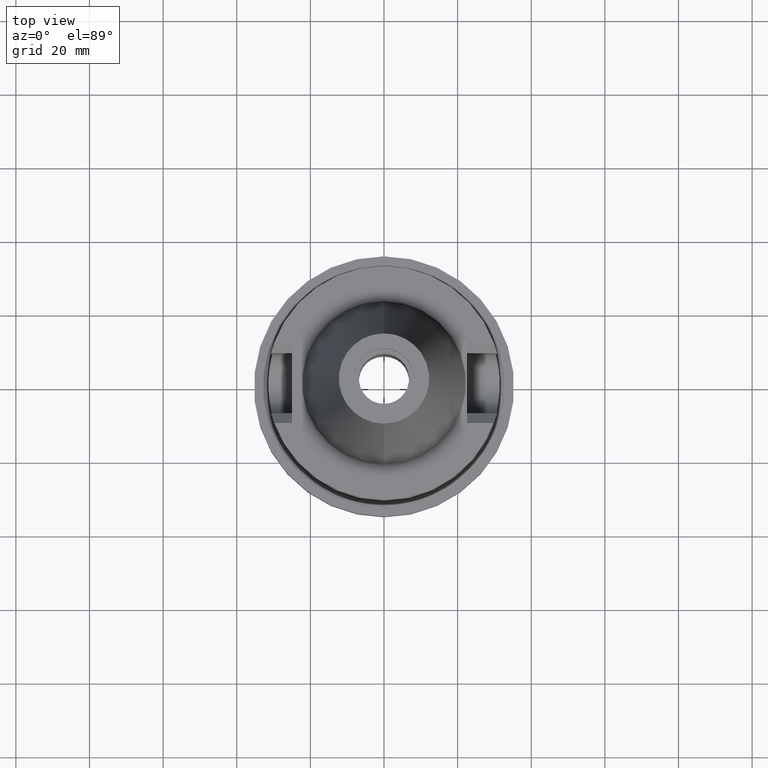
[diagram: clean part render]
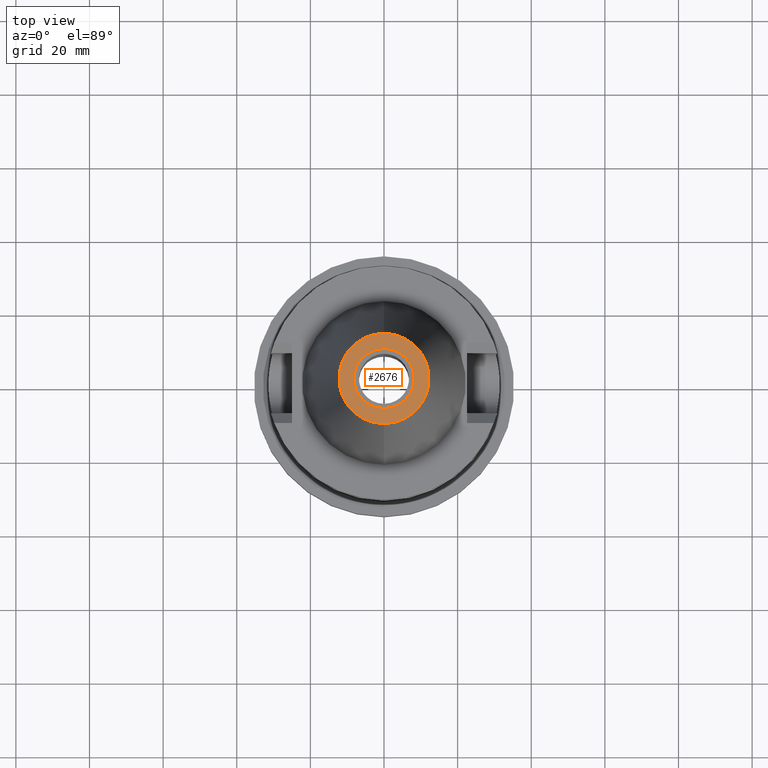
[diagram: same view with one face highlighted and labeled with its STEP entity id]
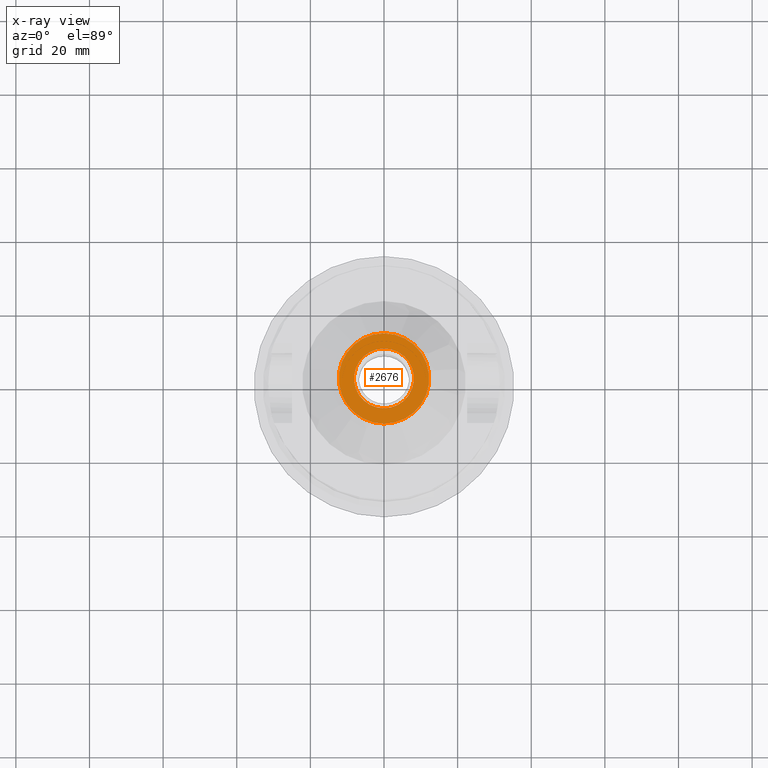
[diagram: x-ray of the same camera — body ghosted, the highlighted face saturated]
A machine part, top view. The second image highlights one B-rep face of the part: STEP entity #2676.
The next image is the same camera in x-ray: the body ghosted, the highlighted face saturated — about 0% of this face is hidden behind the body in this view.
In plain terms, the highlighted planar face has unit normal (0, 0, 1).
Its self-contained STEP definition (entity closure, byte-faithful):
#1224=CARTESIAN_POINT('',(0.E0,0.E0,6.825E1));
#1225=DIRECTION('',(0.E0,0.E0,-1.E0));
#1226=DIRECTION('',(0.E0,-1.E0,0.E0));
#1227=AXIS2_PLACEMENT_3D('',#1224,#1225,#1226);
#1232=CARTESIAN_POINT('',(0.E0,0.E0,6.825E1));
#1233=DIRECTION('',(0.E0,0.E0,-1.E0));
#1234=DIRECTION('',(0.E0,1.E0,0.E0));
#1235=AXIS2_PLACEMENT_3D('',#1232,#1233,#1234);
#1240=CARTESIAN_POINT('',(0.E0,0.E0,6.825E1));
#1241=DIRECTION('',(0.E0,0.E0,1.E0));
#1242=DIRECTION('',(0.E0,-1.E0,0.E0));
#1243=AXIS2_PLACEMENT_3D('',#1240,#1241,#1242);
#1248=CARTESIAN_POINT('',(0.E0,0.E0,6.825E1));
#1249=DIRECTION('',(0.E0,0.E0,1.E0));
#1250=DIRECTION('',(0.E0,1.E0,0.E0));
#1251=AXIS2_PLACEMENT_3D('',#1248,#1249,#1250);
#1452=CARTESIAN_POINT('',(0.E0,1.227186888070E1,6.825E1));
#1454=VERTEX_POINT('',#1452);
#1456=CARTESIAN_POINT('',(0.E0,-1.227186888070E1,6.825E1));
#1457=VERTEX_POINT('',#1456);
#1677=CARTESIAN_POINT('',(0.E0,8.16E0,6.825E1));
#1678=VERTEX_POINT('',#1677);
#1679=CARTESIAN_POINT('',(0.E0,-8.16E0,6.825E1));
#1680=VERTEX_POINT('',#1679);
#2663=CARTESIAN_POINT('',(0.E0,0.E0,6.825E1));
#2664=DIRECTION('',(0.E0,0.E0,1.E0));
#2665=DIRECTION('',(0.E0,1.E0,0.E0));
#2666=AXIS2_PLACEMENT_3D('',#2663,#2664,#2665);
#2667=PLANE('',#2666);
#2668=ORIENTED_EDGE('',*,*,#1702,.T.);
#2669=ORIENTED_EDGE('',*,*,#1720,.T.);
#2670=EDGE_LOOP('',(#2668,#2669));
#2671=FACE_OUTER_BOUND('',#2670,.F.);
#2672=ORIENTED_EDGE('',*,*,#2656,.T.);
#2673=ORIENTED_EDGE('',*,*,#2645,.T.);
#2674=EDGE_LOOP('',(#2672,#2673));
#2675=FACE_BOUND('',#2674,.F.);
#1228=CIRCLE('',#1227,1.227186888070E1);
#1236=CIRCLE('',#1235,1.227186888070E1);
#1244=CIRCLE('',#1243,8.16E0);
#1252=CIRCLE('',#1251,8.16E0);
#1702=EDGE_CURVE('',#1457,#1454,#1228,.T.);
#1720=EDGE_CURVE('',#1454,#1457,#1236,.T.);
#2645=EDGE_CURVE('',#1678,#1680,#1252,.T.);
#2656=EDGE_CURVE('',#1680,#1678,#1244,.T.);
#2676=ADVANCED_FACE('',(#2671,#2675),#2667,.T.);